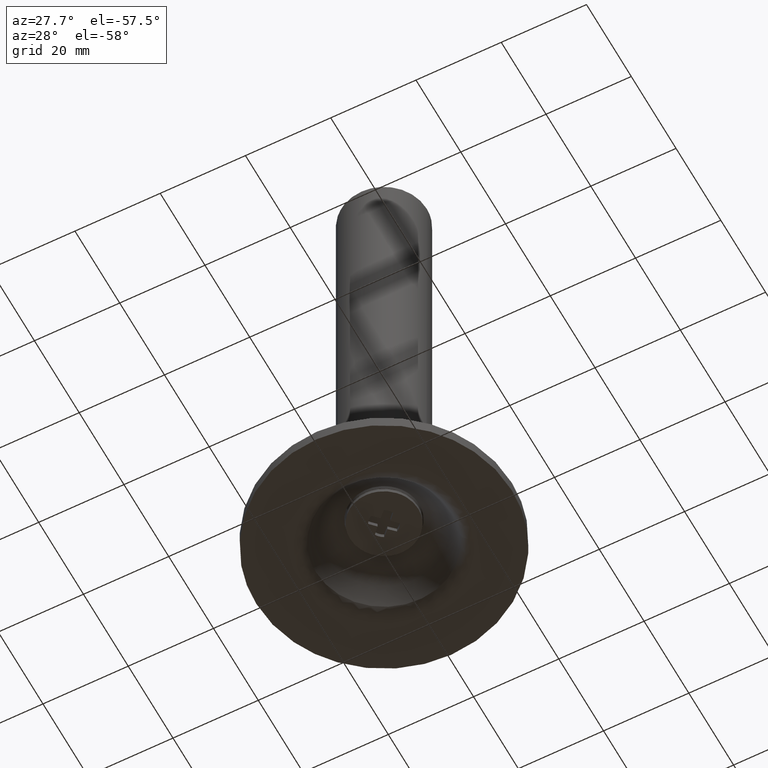
[diagram: clean part render]
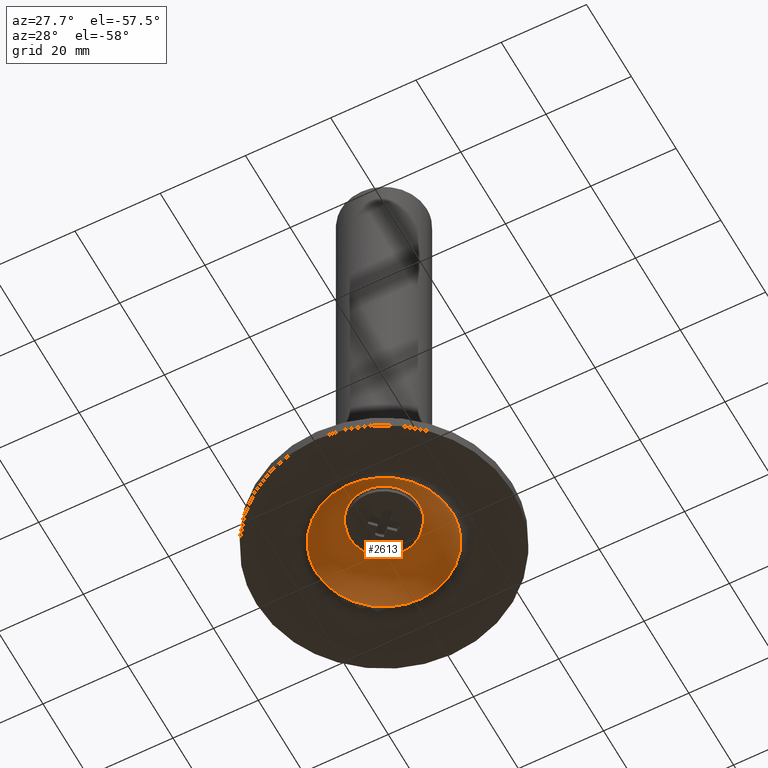
[diagram: same view with one face highlighted and labeled with its STEP entity id]
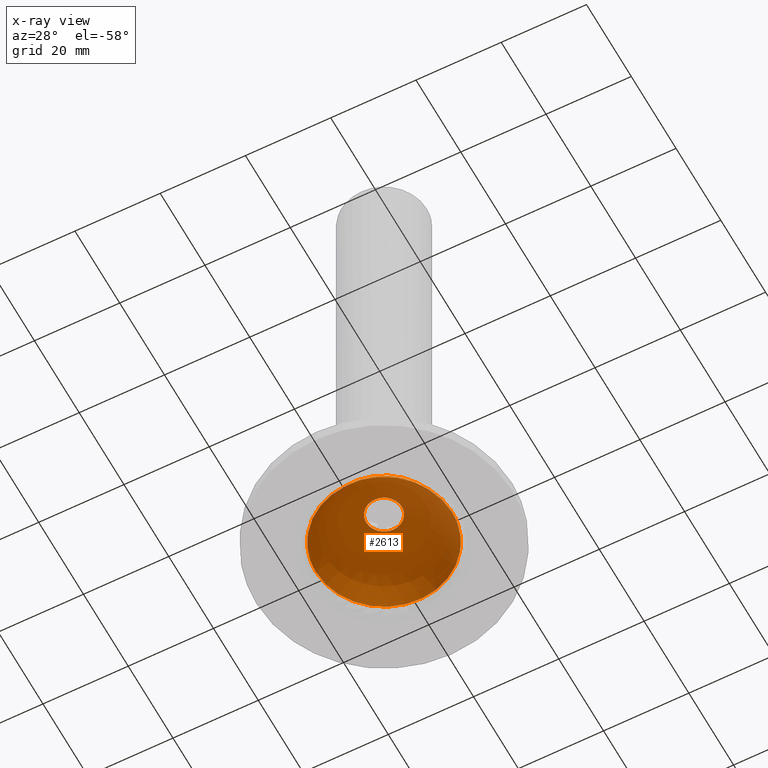
[diagram: x-ray of the same camera — body ghosted, the highlighted face saturated]
A machine part, auxiliary view. The second image highlights one B-rep face of the part: STEP entity #2613.
The next image is the same camera in x-ray: the body ghosted, the highlighted face saturated — about 0% of this face is hidden behind the body in this view.
In plain terms, the highlighted face is a freeform B-spline surface patch.
Its self-contained STEP definition (entity closure, byte-faithful):
#2242=CARTESIAN_POINT('',(2.815640469696390,3.072732380534583,12.489054450537340));
#2243=VERTEX_POINT('',#2242);
#2249=CARTESIAN_POINT('',(4.167674628230945,0.0,12.489054360205440));
#2250=VERTEX_POINT('',#2249);
#2251=CARTESIAN_POINT('',(2.815640469696390,3.072732380534583,12.489054450537340));
#2252=CARTESIAN_POINT('',(3.147561014272629,2.768974960976502,12.489054441607511));
#2253=CARTESIAN_POINT('',(3.609630167589309,2.181440751740007,12.489054424335251));
#2254=CARTESIAN_POINT('',(4.062239602344310,1.115624423303236,12.489054393002430));
#2255=CARTESIAN_POINT('',(4.167846056767824,0.413919030557856,12.489054372373859));
#2256=CARTESIAN_POINT('',(4.167674628230945,0.0,12.489054360205440));
#2257=B_SPLINE_CURVE_WITH_KNOTS('',3,(#2251,#2252,#2253,#2254,#2255,#2256),.UNSPECIFIED.,.F.,.U.,(4,1,1,4),(0.000000043387695,1.349680313947980,2.213450126820075,3.455157450244681),.UNSPECIFIED.);
#2258=EDGE_CURVE('',#2243,#2250,#2257,.T.);
#2260=CARTESIAN_POINT('',(-0.000001716479817,-4.167674628230592,12.489054360205440));
#2261=VERTEX_POINT('',#2260);
#2262=CARTESIAN_POINT('',(4.167674628230945,0.0,12.489054360205440));
#2263=CARTESIAN_POINT('',(4.168213831698433,-0.528591661480691,12.489054360205429));
#2264=CARTESIAN_POINT('',(4.006533172149522,-1.363545097055829,12.489054360205451));
#2265=CARTESIAN_POINT('',(3.505074946351385,-2.301401750114575,12.489054360205451));
#2266=CARTESIAN_POINT('',(2.966658134955648,-2.965746513515614,12.489054360205429));
#2267=CARTESIAN_POINT('',(2.306638884910275,-3.514281550230737,12.489054360205470));
#2268=CARTESIAN_POINT('',(1.295425954494097,-4.023303287169337,12.489054360205399));
#2269=CARTESIAN_POINT('',(0.494469340604745,-4.168098056866171,12.489054360205481));
#2270=CARTESIAN_POINT('',(-0.000001716479817,-4.167674628230592,12.489054360205440));
#2271=B_SPLINE_CURVE_WITH_KNOTS('',3,(#2262,#2263,#2264,#2265,#2266,#2267,#2268,#2269,#2270),.UNSPECIFIED.,.F.,.U.,(4,1,1,1,1,1,4),(0.000000155773176,1.585506534617054,2.506148262745891,3.171034318597738,4.142753611757735,5.063396234489234,6.546610041693768),.UNSPECIFIED.);
#2272=EDGE_CURVE('',#2250,#2261,#2271,.T.);
#2274=CARTESIAN_POINT('',(-2.815640469696388,-3.072732380534581,12.489054450537340));
#2275=VERTEX_POINT('',#2274);
#2276=CARTESIAN_POINT('',(-0.000001716479817,-4.167674628230592,12.489054360205440));
#2277=CARTESIAN_POINT('',(-0.499198694601800,-4.168043133032207,12.489054376220791));
#2278=CARTESIAN_POINT('',(-1.529337483048502,-3.980225013814625,12.489054409269860));
#2279=CARTESIAN_POINT('',(-2.424212054132662,-3.432134692876331,12.489054437979471));
#2280=CARTESIAN_POINT('',(-2.815640469696388,-3.072732380534581,12.489054450537340));
#2281=B_SPLINE_CURVE_WITH_KNOTS('',3,(#2276,#2277,#2278,#2279,#2280),.UNSPECIFIED.,.F.,.U.,(4,1,4),(0.000000031753051,1.497442795786285,3.091450639208204),.UNSPECIFIED.);
#2282=EDGE_CURVE('',#2261,#2275,#2281,.T.);
#2312=CARTESIAN_POINT('',(-4.167674628230945,0.0,12.489054360205440));
#2313=VERTEX_POINT('',#2312);
#2314=CARTESIAN_POINT('',(-2.815640469696388,-3.072732380534581,12.489054450537340));
#2315=CARTESIAN_POINT('',(-3.001398139939279,-2.902540310735844,12.489054445534061));
#2316=CARTESIAN_POINT('',(-3.378439758688474,-2.488250067315045,12.489054433354800));
#2317=CARTESIAN_POINT('',(-3.758528184932735,-1.850669614910714,12.489054414611250));
#2318=CARTESIAN_POINT('',(-4.078433267705287,-1.007638860741387,12.489054389827929));
#2319=CARTESIAN_POINT('',(-4.167889654748327,-0.413933732971272,12.489054372374220));
#2320=CARTESIAN_POINT('',(-4.167674628230945,0.0,12.489054360205440));
#2321=B_SPLINE_CURVE_WITH_KNOTS('',3,(#2314,#2315,#2316,#2317,#2318,#2319,#2320),.UNSPECIFIED.,.F.,.U.,(4,1,1,1,4),(0.000000043387757,0.755814431385498,1.673614522415651,2.213450126820098,3.455157450244680),.UNSPECIFIED.);
#2322=EDGE_CURVE('',#2275,#2313,#2321,.T.);
#2324=CARTESIAN_POINT('',(0.000001716479826,4.167674628230591,12.489054360205440));
#2325=VERTEX_POINT('',#2324);
#2326=CARTESIAN_POINT('',(-4.167674628230945,0.0,12.489054360205440));
#2327=CARTESIAN_POINT('',(-4.167691226184602,0.255719991093423,12.489054360205440));
#2328=CARTESIAN_POINT('',(-4.115764829365320,0.818314155880191,12.489054360205440));
#2329=CARTESIAN_POINT('',(-3.871811415803109,1.622613889625903,12.489054360205429));
#2330=CARTESIAN_POINT('',(-3.433999795022895,2.418007295333827,12.489054360205481));
#2331=CARTESIAN_POINT('',(-2.756649735730520,3.193833721945739,12.489054360205390));
#2332=CARTESIAN_POINT('',(-1.935831197398896,3.735044636961028,12.489054360205550));
#2333=CARTESIAN_POINT('',(-0.971679517321921,4.086536026309433,12.489054360205349));
#2334=CARTESIAN_POINT('',(-0.375075042859294,4.167799632644232,12.489054360205539));
#2335=CARTESIAN_POINT('',(0.000001716479826,4.167674628230591,12.489054360205440));
#2336=B_SPLINE_CURVE_WITH_KNOTS('',3,(#2326,#2327,#2328,#2329,#2330,#2331,#2332,#2333,#2334,#2335),.UNSPECIFIED.,.F.,.U.,(4,1,1,1,1,1,1,4),(0.000000155772993,0.767164741878990,1.687798358854344,2.506148262745854,3.477855244146505,4.756518903525303,5.421417077381761,6.546610041693778),.UNSPECIFIED.);
#2337=EDGE_CURVE('',#2313,#2325,#2336,.T.);
#2339=CARTESIAN_POINT('',(0.000001716479826,4.167674628230591,12.489054360205440));
#2340=CARTESIAN_POINT('',(0.354242418377142,4.167767454460046,12.489054371570260));
#2341=CARTESIAN_POINT('',(0.901616211882650,4.097431377347706,12.489054389131230));
#2342=CARTESIAN_POINT('',(1.880728869909546,3.768114695658044,12.489054420543260));
#2343=CARTESIAN_POINT('',(2.459712336586726,3.399390792795481,12.489054439118391));
#2344=CARTESIAN_POINT('',(2.815640469696390,3.072732380534583,12.489054450537340));
#2345=B_SPLINE_CURVE_WITH_KNOTS('',3,(#2339,#2340,#2341,#2342,#2343,#2344),.UNSPECIFIED.,.F.,.U.,(4,1,1,4),(0.000000031753025,1.062693459039212,1.642328304279965,3.091450639208199),.UNSPECIFIED.);
#2346=EDGE_CURVE('',#2325,#2243,#2345,.T.);
#2507=CARTESIAN_POINT('',(-12.007220716015356,-12.007220715988499,-4.954843890401706));
#2508=CARTESIAN_POINT('',(-8.157473287589461,-16.314946575484694,0.804263080064779));
#2509=CARTESIAN_POINT('',(8.157473287930742,-16.314946575484694,0.804263079485303));
#2510=CARTESIAN_POINT('',(12.007220715947525,-12.007220715988499,-4.954843891254655));
#2511=CARTESIAN_POINT('',(-16.314946575349570,-8.157473287724590,0.804263080294216));
#2512=CARTESIAN_POINT('',(-12.721429661615691,-12.721429662094030,13.007599052164240));
#2513=CARTESIAN_POINT('',(12.721429662823841,-12.721429662094030,13.007599051260550));
#2514=CARTESIAN_POINT('',(16.314946575690843,-8.157473287724590,0.804263079135261));
#2515=CARTESIAN_POINT('',(-16.314946575349570,8.157473287795620,0.804263080173602));
#2516=CARTESIAN_POINT('',(-12.721429661615691,12.721429662345489,13.007599051976140));
#2517=CARTESIAN_POINT('',(12.721429662823841,12.721429662345489,13.007599051072461));
#2518=CARTESIAN_POINT('',(16.314946575690843,8.157473287795620,0.804263079014649));
#2519=CARTESIAN_POINT('',(-12.007220716015356,12.007220715974384,-4.954843890579236));
#2520=CARTESIAN_POINT('',(-8.157473287589461,16.314946575555723,0.804263079823560));
#2521=CARTESIAN_POINT('',(8.157473287930742,16.314946575555723,0.804263079244084));
#2522=CARTESIAN_POINT('',(12.007220715947525,12.007220715974384,-4.954843891432181));
#2530=(BOUNDED_SURFACE()B_SPLINE_SURFACE(2,2,((#2507,#2511,#2515,#2519),(#2508,#2512,#2516,#2520),(#2509,#2513,#2517,#2521),(#2510,#2514,#2518,#2522)),.UNSPECIFIED.,.F.,.F.,.U.)B_SPLINE_SURFACE_WITH_KNOTS((3,1,3),(3,1,3),(0.0,19.881259642863920,39.762519285727841),(0.0,19.881259642863920,39.762519285727826),.UNSPECIFIED.)GEOMETRIC_REPRESENTATION_ITEM()RATIONAL_B_SPLINE_SURFACE(((2.118963241058394,1.559481620529197,1.559481620529197,2.118963241058394),(1.559481620529197,1.0,1.0,1.559481620529197),(1.559481620529197,1.0,1.0,1.559481620529197),(2.118963241058394,1.559481620529197,1.559481620529197,2.118963241058394)))REPRESENTATION_ITEM('')SURFACE());
#2531=CARTESIAN_POINT('',(-15.953341218199091,0.0,1.894856187925218));
#2532=VERTEX_POINT('',#2531);
#2533=CARTESIAN_POINT('',(14.833041536389580,5.872816600017001,1.894856186788331));
#2534=VERTEX_POINT('',#2533);
#2535=CARTESIAN_POINT('',(-15.953341218199091,0.0,1.894856187925218));
#2536=CARTESIAN_POINT('',(-15.953753768054669,1.378297073234571,1.894856187915859));
#2537=CARTESIAN_POINT('',(-15.661221238546080,3.617745460285739,1.894856187890229));
#2538=CARTESIAN_POINT('',(-14.680675506986150,6.387779540313702,1.894856187836442));
#2539=CARTESIAN_POINT('',(-13.713005767912041,8.219668994865549,1.894856187789539));
#2540=CARTESIAN_POINT('',(-12.577829487081910,9.881300633922855,1.894856187737753));
#2541=CARTESIAN_POINT('',(-11.281443897320839,11.348840923398090,1.894856187681617));
#2542=CARTESIAN_POINT('',(-9.626776582103194,12.777556837068190,1.894856187612943));
#2543=CARTESIAN_POINT('',(-7.607858478209783,14.108147104656579,1.894856187531956));
#2544=CARTESIAN_POINT('',(-5.337663993105908,15.109089147670590,1.894856187444268));
#2545=CARTESIAN_POINT('',(-2.942008558026481,15.729107803547549,1.894856187354700));
#2546=CARTESIAN_POINT('',(-0.598186648896093,16.007745441767060,1.894856187269282));
#2547=CARTESIAN_POINT('',(1.648202228349537,15.921692753144839,1.894856187189830));
#2548=CARTESIAN_POINT('',(3.798847094083126,15.533210449238741,1.894856187115824));
#2549=CARTESIAN_POINT('',(5.889696683513898,14.892325697258540,1.894856187045741));
#2550=CARTESIAN_POINT('',(8.123029191622512,13.817186347576490,1.894856186973419));
#2551=CARTESIAN_POINT('',(10.427298153252110,12.185917966841521,1.894856186902394));
#2552=CARTESIAN_POINT('',(12.327885569673681,10.251464186577021,1.894856186847857));
#2553=CARTESIAN_POINT('',(13.831888364240500,8.070531502965126,1.894856186809013));
#2554=CARTESIAN_POINT('',(14.537120227336560,6.620355039245256,1.894856186793884));
#2555=CARTESIAN_POINT('',(14.833041536389580,5.872816600017001,1.894856186788331));
#2556=B_SPLINE_CURVE_WITH_KNOTS('',3,(#2535,#2536,#2537,#2538,#2539,#2540,#2541,#2542,#2543,#2544,#2545,#2546,#2547,#2548,#2549,#2550,#2551,#2552,#2553,#2554,#2555),.UNSPECIFIED.,.F.,.U.,(4,1,1,1,1,1,1,1,1,1,1,1,1,1,1,1,1,1,4),(0.000000065686265,4.134772651851620,6.719061831895317,8.786496327378167,10.337074144384561,12.749066920218540,14.644196071637049,16.883928709569400,19.985054889423289,22.052423924308901,24.292117252244179,27.048628300952249,28.771487736603071,30.838922586667181,33.595493677674227,36.179782142137192,39.280917996327197,41.692900474702689,44.104845931511697),.UNSPECIFIED.);
#2557=EDGE_CURVE('',#2532,#2534,#2556,.T.);
#2558=ORIENTED_EDGE('',*,*,#2557,.T.);
#2559=CARTESIAN_POINT('',(15.953341218199100,0.0,1.894856187925220));
#2560=VERTEX_POINT('',#2559);
#2561=CARTESIAN_POINT('',(14.833041536389580,5.872816600017001,1.894856186788331));
#2562=CARTESIAN_POINT('',(15.155970584992010,5.057345239085040,1.894856186952161));
#2563=CARTESIAN_POINT('',(15.739809080506230,3.132352899764846,1.894856187332512));
#2564=CARTESIAN_POINT('',(15.953541130113340,1.127691769649496,1.894856187714606));
#2565=CARTESIAN_POINT('',(15.953341218199100,0.0,1.894856187925220));
#2566=B_SPLINE_CURVE_WITH_KNOTS('',3,(#2561,#2562,#2563,#2564,#2565),.UNSPECIFIED.,.F.,.U.,(4,1,4),(4.142361E-009,2.631249730091446,6.014276643698996),.UNSPECIFIED.);
#2567=EDGE_CURVE('',#2534,#2560,#2566,.T.);
#2568=ORIENTED_EDGE('',*,*,#2567,.T.);
#2569=CARTESIAN_POINT('',(-14.833041536389571,-5.872816600017006,1.894856186788331));
#2570=VERTEX_POINT('',#2569);
#2571=CARTESIAN_POINT('',(15.953341218199100,0.0,1.894856187925220));
#2572=CARTESIAN_POINT('',(15.953522139755620,-1.148565247754214,1.894856187917420));
#2573=CARTESIAN_POINT('',(15.760228474729590,-2.928729033520205,1.894856187898431));
#2574=CARTESIAN_POINT('',(15.056226530033859,-5.419996734114531,1.894856187856415));
#2575=CARTESIAN_POINT('',(14.045417430262230,-7.743762404957496,1.894856187804597));
#2576=CARTESIAN_POINT('',(12.571073594271549,-9.952487529657052,1.894856187737051));
#2577=CARTESIAN_POINT('',(10.545495764030090,-12.077989596857970,1.894856187650453));
#2578=CARTESIAN_POINT('',(8.317330311717772,-13.725455936814710,1.894856187559805));
#2579=CARTESIAN_POINT('',(5.875037042463624,-14.898081054094691,1.894856187464858));
#2580=CARTESIAN_POINT('',(3.783610511367312,-15.536936788394160,1.894856187385986));
#2581=CARTESIAN_POINT('',(1.689214036178609,-15.913116481245019,1.894856187308847));
#2582=CARTESIAN_POINT('',(-0.440626510347233,-16.004126668134202,1.894856187232267));
#2583=CARTESIAN_POINT('',(-2.787605127821727,-15.761330129756400,1.894856187150352));
#2584=CARTESIAN_POINT('',(-4.911564529798622,-15.233718546315140,1.894856187078166));
#2585=CARTESIAN_POINT('',(-7.312873789672976,-14.263975481050720,1.894856186999271));
#2586=CARTESIAN_POINT('',(-9.525912150933975,-12.903315189733350,1.894856186929644));
#2587=CARTESIAN_POINT('',(-11.286300260587939,-11.329520819317381,1.894856186877612));
#2588=CARTESIAN_POINT('',(-12.654786100399759,-9.777282234726235,1.894856186839400));
#2589=CARTESIAN_POINT('',(-13.831896793854780,-8.070542473449983,1.894856186809131));
#2590=CARTESIAN_POINT('',(-14.537120936344710,-6.620355198922719,1.894856186793662));
#2591=CARTESIAN_POINT('',(-14.833041536389571,-5.872816600017006,1.894856186788331));
#2592=B_SPLINE_CURVE_WITH_KNOTS('',3,(#2571,#2572,#2573,#2574,#2575,#2576,#2577,#2578,#2579,#2580,#2581,#2582,#2583,#2584,#2585,#2586,#2587,#2588,#2589,#2590,#2591),.UNSPECIFIED.,.F.,.U.,(4,1,1,1,1,1,1,1,1,1,1,1,1,1,1,1,1,1,4),(0.000000065580231,3.445656892250462,5.340803763129493,7.752796833487849,11.026213454255871,13.265931311164181,16.539363402530100,19.295908567404599,21.363319130835499,23.086108307005780,25.670354873916089,27.737795822585898,30.149788747767978,32.217208535119262,35.490638865756367,37.902639419705082,39.280917996315956,41.692900474697282,44.104845931512152),.UNSPECIFIED.);
#2593=EDGE_CURVE('',#2560,#2570,#2592,.T.);
#2594=ORIENTED_EDGE('',*,*,#2593,.T.);
#2595=CARTESIAN_POINT('',(-14.833041536389571,-5.872816600017006,1.894856186788331));
#2596=CARTESIAN_POINT('',(-15.248372032049501,-4.824391396715579,1.894856186998960));
#2597=CARTESIAN_POINT('',(-15.787581611103780,-2.881819744690578,1.894856187381031));
#2598=CARTESIAN_POINT('',(-15.953406048239961,-0.877084905675296,1.894856187761389));
#2599=CARTESIAN_POINT('',(-15.953341218199091,0.0,1.894856187925218));
#2600=B_SPLINE_CURVE_WITH_KNOTS('',3,(#2595,#2596,#2597,#2598,#2599),.UNSPECIFIED.,.F.,.U.,(4,1,4),(4.142446E-009,3.383026917749912,6.014276643699010),.UNSPECIFIED.);
#2601=EDGE_CURVE('',#2570,#2532,#2600,.T.);
#2602=ORIENTED_EDGE('',*,*,#2601,.T.);
#2603=EDGE_LOOP('',(#2558,#2568,#2594,#2602));
#2604=FACE_OUTER_BOUND('',#2603,.T.);
#2605=ORIENTED_EDGE('',*,*,#2337,.F.);
#2606=ORIENTED_EDGE('',*,*,#2322,.F.);
#2607=ORIENTED_EDGE('',*,*,#2282,.F.);
#2608=ORIENTED_EDGE('',*,*,#2272,.F.);
#2609=ORIENTED_EDGE('',*,*,#2258,.F.);
#2610=ORIENTED_EDGE('',*,*,#2346,.F.);
#2611=EDGE_LOOP('',(#2605,#2606,#2607,#2608,#2609,#2610));
#2612=FACE_BOUND('',#2611,.T.);
#2613=ADVANCED_FACE('',(#2604,#2612),#2530,.F.);